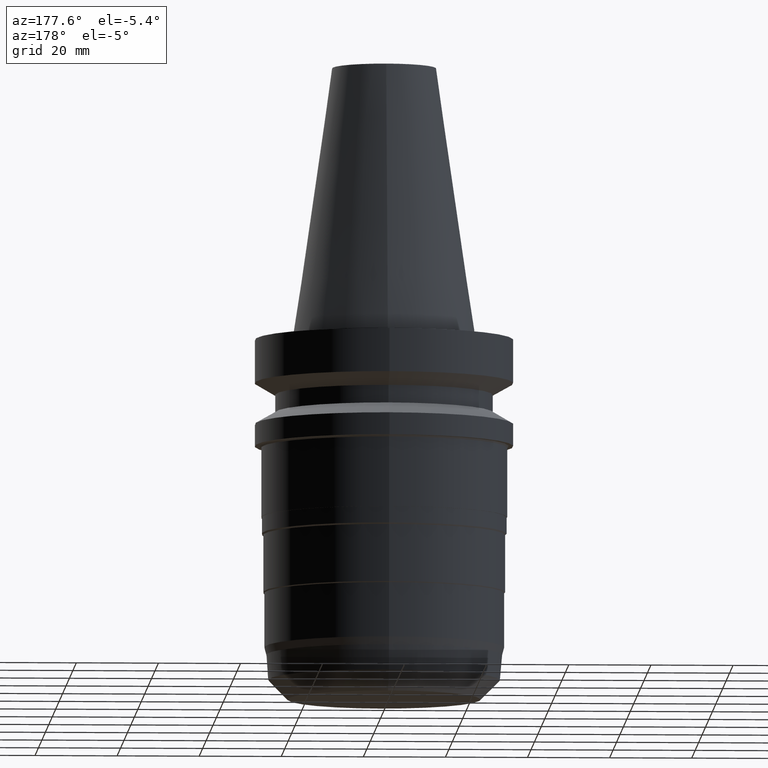
[diagram: clean part render]
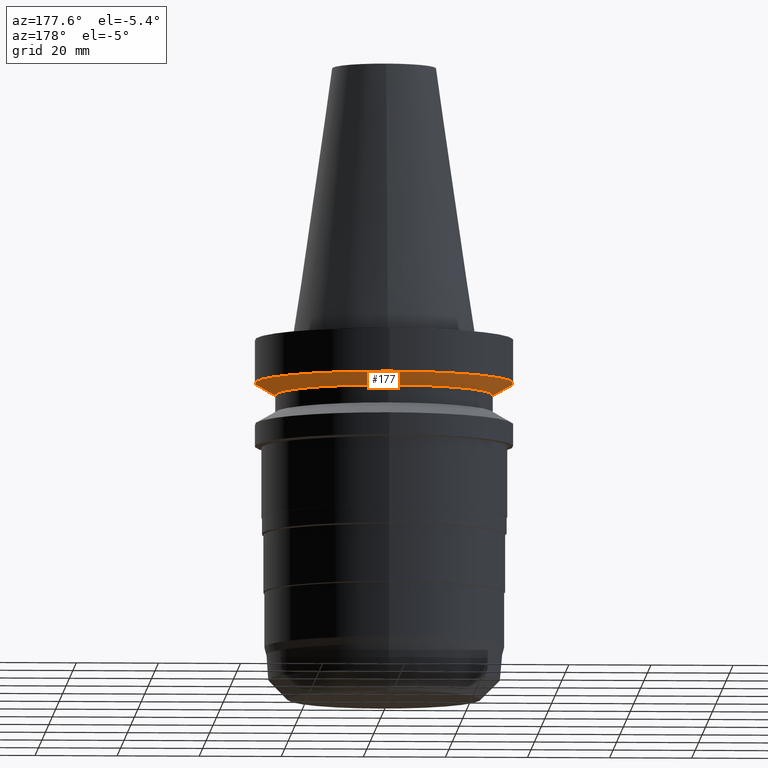
[diagram: same view with one face highlighted and labeled with its STEP entity id]
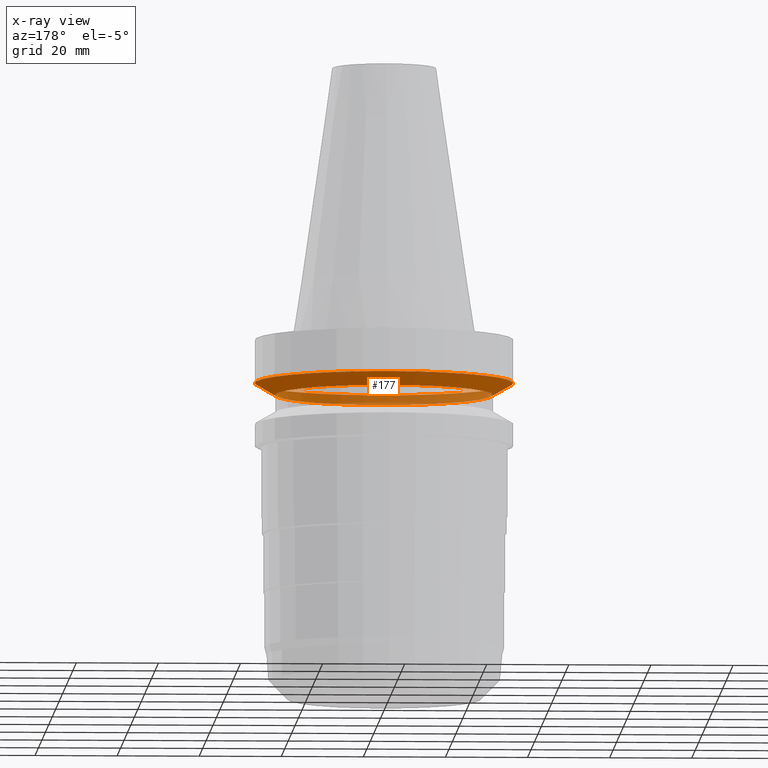
[diagram: x-ray of the same camera — body ghosted, the highlighted face saturated]
A machine part, auxiliary view. The second image highlights one B-rep face of the part: STEP entity #177.
The next image is the same camera in x-ray: the body ghosted, the highlighted face saturated — about 35% of this face is hidden behind the body in this view.
In plain terms, the highlighted conical surface has half-angle 60 deg.
Its self-contained STEP definition (entity closure, byte-faithful):
#74=EDGE_CURVE('Unnamed[1]',#205,#205,#206,.T.);
#174=EDGE_CURVE('Unnamed[1]',#361,#361,#362,.T.);
#177=ADVANCED_FACE('Unnamed[1]',(#365,#366),#367,.T.);
#205=VERTEX_POINT('',#388);
#206=CIRCLE('',#389,26.4999999999995);
#361=VERTEX_POINT('',#583);
#362=CIRCLE('',#584,31.5000000000004);
#365=FACE_BOUND('',#588,.T.);
#366=FACE_BOUND('',#589,.T.);
#367=CONICAL_SURFACE('',#590,28.9999999999999,1.04719755119657);
#388=CARTESIAN_POINT('',(8.8494551369045E-016,26.4999999999995,-14.4522569986152));
#389=AXIS2_PLACEMENT_3D('',#604,#605,#606);
#583=CARTESIAN_POINT('',(7.08182973902924E-016,31.5000000000004,-11.5655056526664));
#584=AXIS2_PLACEMENT_3D('',#777,#778,#779);
#588=EDGE_LOOP('',(#781));
#589=EDGE_LOOP('',(#782));
#590=AXIS2_PLACEMENT_3D('',#783,#784,#785);
#604=CARTESIAN_POINT('',(8.8494551369045E-016,1.7698910273809E-015,-14.4522569986152));
#605=DIRECTION('',(6.12323399573677E-017,1.22464679914706E-016,-1.0));
#606=DIRECTION('',(-1.23259516440786E-032,1.0,1.22464679914706E-016));
#777=CARTESIAN_POINT('',(7.08182973902924E-016,1.41636594780585E-015,-11.5655056526664));
#778=DIRECTION('',(6.12323399573677E-017,1.22464679914769E-016,-1.0));
#779=DIRECTION('',(-1.23259516440782E-032,1.0,1.22464679914769E-016));
#781=ORIENTED_EDGE('',*,*,#74,.F.);
#782=ORIENTED_EDGE('',*,*,#174,.T.);
#783=CARTESIAN_POINT('',(7.96564243796687E-016,1.59312848759337E-015,-13.0088813256408));
#784=DIRECTION('',(-6.12323399573677E-017,-1.22464679914712E-016,1.0));
#785=DIRECTION('',(-1.23259516440783E-032,1.0,1.22464679914712E-016));